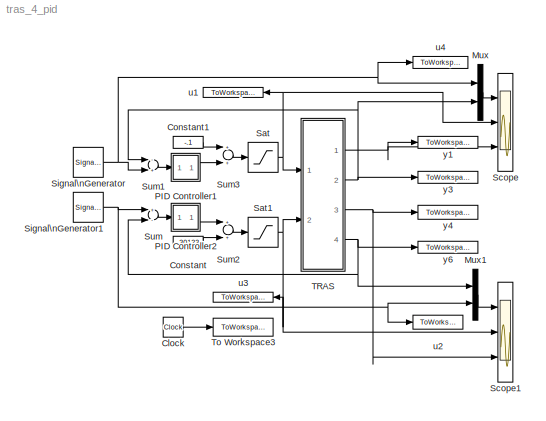
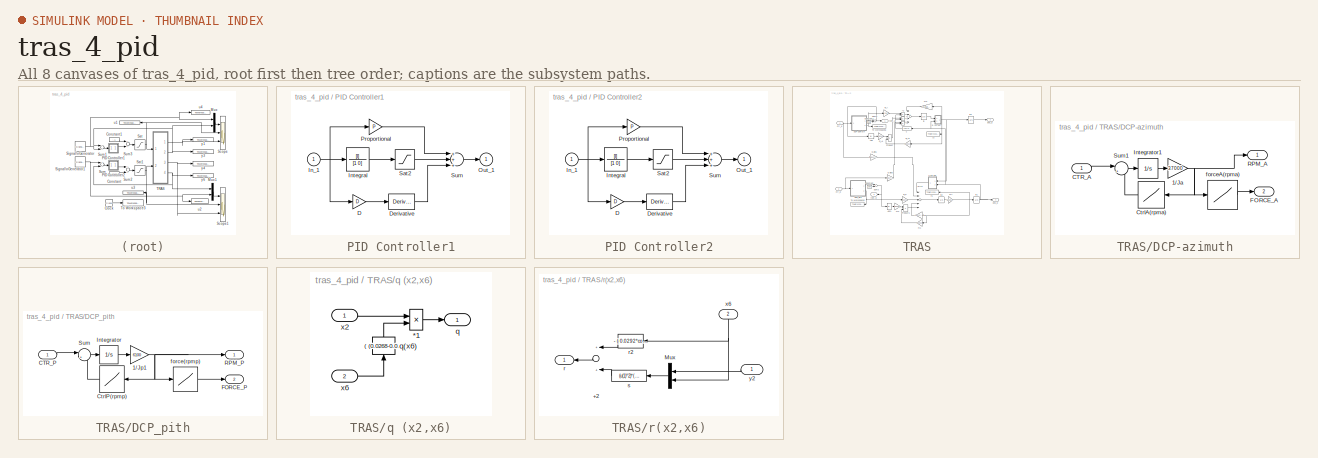
[diagram: thumbnail index - all 8 canvases of the model, root first then tree order]
MODEL tras_4_pid
KIND model
CONFIG AbsTol = auto
CONFIG FixedStep = .01
CONFIG MaxStep = auto
CONFIG MinStep = auto
CONFIG RelTol = 1e-3
CONFIG Solver = ode5
CONFIG SolverMode = Auto
CONFIG StartTime = 0.0
CONFIG StopTime = 80
BLOCK [Clock] Clock
  Decimation = 1
BLOCK [Constant] Constant
  Value = .30123
BLOCK [Constant] Constant1
  Value = -.1
BLOCK [Mux] Mux
  DisplayOption = bar
  Inputs = 2
  Ports = [2, 1]
BLOCK [Mux] Mux1
  DisplayOption = bar
  Inputs = 2
  Ports = [2, 1]
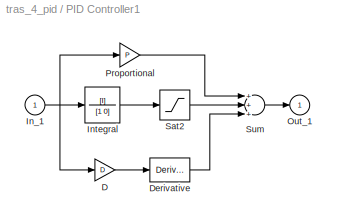
BLOCK [SubSystem] PID Controller1
  AncestorBlock = simulink_extras/Additional\nLinear/PID Controller
  MaskCallbackString = |||
  MaskDescription = Enter expressions for proportional, integral, and derivative terms.\nP+I/s+Ds
  MaskDisplay = disp('PID')
  MaskEnableString = on,on,on,on
  MaskHelp = This block implements a PID controller where parameters are entered for the Proportional, Integral and Derivative terms. Unmask this block to see how it works. The derivative term is implemented using a true derivative block.
  MaskIconFrame = on
  MaskIconOpaque = on
  MaskIconRotate = none
  MaskIconUnits = autoscale
  MaskPromptString = Proportional:|Integral:|Derivative:|Integral sat (0-1)
  MaskStyleString = edit,edit,edit,edit
  MaskToolTipString = on,on,on,on
  MaskTunableValueString = on,on,on,on
  MaskType = PID Controller
  MaskValueString = a|b|c|1
  MaskVarAliasString = ,,,
  MaskVariables = P=@1;I=@2;D=@3;S=@4;
  MaskVisibilityString = on,on,on,on
  Ports = [1, 1]
  TreatAsAtomicUnit = off
BLOCK [Gain] PID Controller1/D
  Gain = D
BLOCK [Derivative] PID Controller1/Derivative
BLOCK [Inport] PID Controller1/In_1
BLOCK [TransferFcn] PID Controller1/Integral
  Denominator = [1 0]
  Numerator = [I]
BLOCK [Outport] PID Controller1/Out_1
  InitialOutput = 0
BLOCK [Gain] PID Controller1/Proportional
  Gain = P
BLOCK [Saturate] PID Controller1/Sat2
  LowerLimit = -S
  UpperLimit = S
BLOCK [Sum] PID Controller1/Sum
  Inputs = +++
  Ports = [3, 1]
BLOCK [SubSystem] PID Controller2
  AncestorBlock = simulink_extras/Additional\nLinear/PID Controller
  MaskCallbackString = |||
  MaskDescription = Enter expressions for proportional, integral, and derivative terms.\nP+I/s+Ds
  MaskDisplay = disp('PID')
  MaskEnableString = on,on,on,on
  MaskHelp = This block implements a PID controller where parameters are entered for the Proportional, Integral and Derivative terms. Unmask this block to see how it works. The derivative term is implemented using a true derivative block.
  MaskIconFrame = on
  MaskIconOpaque = on
  MaskIconRotate = none
  MaskIconUnits = autoscale
  MaskPromptString = Proportional:|Integral:|Derivative:|Integral sat (0-1)
  MaskStyleString = edit,edit,edit,edit
  MaskToolTipString = on,on,on,on
  MaskTunableValueString = on,on,on,on
  MaskType = PID Controller
  MaskValueString = d|e|f|  1.4613
  MaskVarAliasString = ,,,
  MaskVariables = P=@1;I=@2;D=@3;S=@4;
  MaskVisibilityString = on,on,on,on
  Ports = [1, 1]
  TreatAsAtomicUnit = off
BLOCK [Gain] PID Controller2/D
  Gain = D
BLOCK [Derivative] PID Controller2/Derivative
BLOCK [Inport] PID Controller2/In_1
BLOCK [TransferFcn] PID Controller2/Integral
  Denominator = [1 0]
  Numerator = [I]
BLOCK [Outport] PID Controller2/Out_1
  InitialOutput = 0
BLOCK [Gain] PID Controller2/Proportional
  Gain = P
BLOCK [Saturate] PID Controller2/Sat2
  LowerLimit = -S
  UpperLimit = S
BLOCK [Sum] PID Controller2/Sum
  Inputs = +++
  Ports = [3, 1]
BLOCK [Saturate] Sat
BLOCK [Saturate] Sat1
  LowerLimit = .15
  UpperLimit = 1
BLOCK [Scope] Scope
  DataFormat = StructureWithTime
  NumInputPorts = 3
  Ports = [3]
  YMax = 0~0.006~40
  YMin = -0.0006~-0.001~0
BLOCK [Scope] Scope1
  DataFormat = StructureWithTime
  NumInputPorts = 3
  Ports = [3]
  SaveName = ScopeData1
  YMax = 1.75~1~14000
  YMin = -0.75~-1~-3000
BLOCK [SignalGenerator] Signal\nGenerator
  Amplitude = .1
  Frequency = .05
  WaveForm = square
BLOCK [SignalGenerator] Signal\nGenerator1
  Amplitude = .1
  Frequency = .025
  WaveForm = square
BLOCK [Sum] Sum
  InputSameDT = off
  Inputs = +-
  OutDataTypeMode = Inherit via internal rule
  Ports = [2, 1]
BLOCK [Sum] Sum1
  InputSameDT = off
  Inputs = -+
  OutDataTypeMode = Inherit via internal rule
  Ports = [2, 1]
BLOCK [Sum] Sum2
  InputSameDT = off
  OutDataTypeMode = Inherit via internal rule
  Ports = [2, 1]
BLOCK [Sum] Sum3
  InputSameDT = off
  OutDataTypeMode = Inherit via internal rule
  Ports = [2, 1]
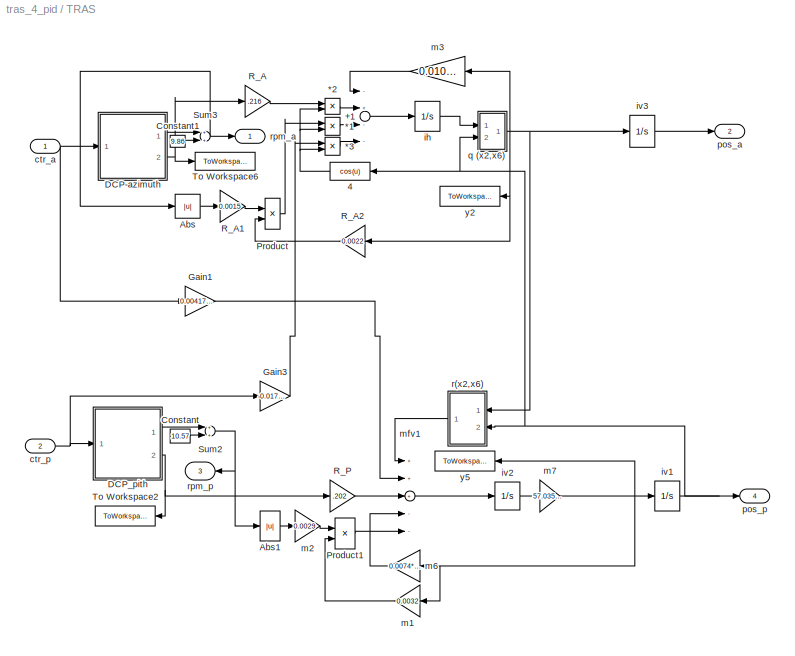
BLOCK [SubSystem] TRAS
  Ports = [2, 4]
  TreatAsAtomicUnit = off
BLOCK [Product] TRAS/*1
  Ports = [2, 1]
BLOCK [Product] TRAS/*2
  Ports = [2, 1]
BLOCK [Product] TRAS/*3
  Ports = [2, 1]
BLOCK [Sum] TRAS/+1
  Inputs = -+--
  Ports = [4, 1]
BLOCK [Fcn] TRAS/4
  Expr = cos(u)
BLOCK [Abs] TRAS/Abs
BLOCK [Abs] TRAS/Abs1
BLOCK [Constant] TRAS/Constant
  Value = 10.57
BLOCK [Constant] TRAS/Constant1
  Value = 9.86
BLOCK [SubSystem] TRAS/DCP-azimuth
  Ports = [1, 2]
  TreatAsAtomicUnit = off
BLOCK [Gain] TRAS/DCP-azimuth/1//Ja
  Gain = 37000
  ShowAdditionalParam = on
BLOCK [Inport] TRAS/DCP-azimuth/CTR_A
BLOCK [Lookup] TRAS/DCP-azimuth/CtrlA(rpma)
  InputValues = rpm_a
  OutputValues = control_a
BLOCK [Outport] TRAS/DCP-azimuth/FORCE_A
  Port = 2
BLOCK [Integrator] TRAS/DCP-azimuth/Integrator1
  Ports = [1, 1]
BLOCK [Outport] TRAS/DCP-azimuth/RPM_A
BLOCK [Sum] TRAS/DCP-azimuth/Sum1
  IconShape = round
  Inputs = |+-
  Ports = [2, 1]
BLOCK [Lookup] TRAS/DCP-azimuth/forceA(rpma)
  InputValues = rpm_a
  OutputValues = force_a
BLOCK [SubSystem] TRAS/DCP_pith
  Ports = [1, 2]
  TreatAsAtomicUnit = off
BLOCK [Gain] TRAS/DCP_pith/1//Jp1
  Gain = 6100
  SaturateOnIntegerOverflow = off
  ShowAdditionalParam = on
BLOCK [Inport] TRAS/DCP_pith/CTR_P
BLOCK [Lookup] TRAS/DCP_pith/CtrlP(rpmp)
  InputValues = rpm_p
  OutputValues = control_p
BLOCK [Outport] TRAS/DCP_pith/FORCE_P
  Port = 2
BLOCK [Integrator] TRAS/DCP_pith/Integrator
  Ports = [1, 1]
BLOCK [Outport] TRAS/DCP_pith/RPM_P
BLOCK [Sum] TRAS/DCP_pith/Sum
  IconShape = round
  Inputs = |+-
  Ports = [2, 1]
BLOCK [Lookup] TRAS/DCP_pith/force(rpmp)
  InputValues = rpm_p
  OutputValues = force_p
BLOCK [Gain] TRAS/Gain1
  Gain = 0.00417495398545
BLOCK [Gain] TRAS/Gain3
  Gain = -0.01782003784180
BLOCK [Product] TRAS/Product
  Ports = [2, 1]
BLOCK [Product] TRAS/Product1
  InputSameDT = off
  Ports = [2, 1]
BLOCK [Gain] TRAS/R_A
  Gain = .216
  SaturateOnIntegerOverflow = off
BLOCK [Gain] TRAS/R_A1
  Gain = 0.0015
  SaturateOnIntegerOverflow = off
BLOCK [Gain] TRAS/R_A2
  Gain = 0.0022
  SaturateOnIntegerOverflow = off
BLOCK [Gain] TRAS/R_P
  Gain = .202
  SaturateOnIntegerOverflow = off
BLOCK [Sum] TRAS/Sum2
  InputSameDT = off
  OutDataTypeMode = Inherit via internal rule
  Ports = [2, 1]
BLOCK [Sum] TRAS/Sum3
  InputSameDT = off
  OutDataTypeMode = Inherit via internal rule
  Ports = [2, 1]
BLOCK [ToWorkspace] TRAS/To Workspace2
  MaxDataPoints = inf
  SampleTime = -1
  SaveFormat = Array
  VariableName = force_pm
BLOCK [ToWorkspace] TRAS/To Workspace6
  MaxDataPoints = inf
  SampleTime = -1
  SaveFormat = Array
  VariableName = force_am
BLOCK [Inport] TRAS/ctr_a
BLOCK [Inport] TRAS/ctr_p
  Port = 2
BLOCK [Integrator] TRAS/ih
  LimitOutput = on
  LowerSaturationLimit = -10
  Ports = [1, 1]
  UpperSaturationLimit = 10
BLOCK [Integrator] TRAS/iv1
  InitialCondition = -.5319*0
  LowerSaturationLimit = -pi
  Ports = [1, 1]
  UpperSaturationLimit = pi
BLOCK [Integrator] TRAS/iv2
  LowerSaturationLimit = -pi
  Ports = [1, 1]
  UpperSaturationLimit = pi
BLOCK [Integrator] TRAS/iv3
  LimitOutput = on
  LowerSaturationLimit = -6
  Ports = [1, 1]
  UpperSaturationLimit = 6
BLOCK [Gain] TRAS/m1
  Gain = 0.0032
BLOCK [Gain] TRAS/m2
  Gain = 0.0029
BLOCK [Gain] TRAS/m3
  Gain = 0.0108*0.4935*1.1051
  SaturateOnIntegerOverflow = off
BLOCK [Gain] TRAS/m6
  Gain = 0.0074*1.7175
  SaturateOnIntegerOverflow = off
BLOCK [Gain] TRAS/m7
  Gain = 57.0357*0.5833
BLOCK [Sum] TRAS/mfv1
  Inputs = +++--
  Ports = [5, 1]
BLOCK [Outport] TRAS/pos_a
  Port = 2
BLOCK [Outport] TRAS/pos_p
  Port = 4
BLOCK [SubSystem] TRAS/q (x2,x6)
  Ports = [2, 1]
  TreatAsAtomicUnit = off
BLOCK [Fcn] TRAS/q (x2,x6)/ q(x6)
  Expr = ( (0.0268-0.00300962066650)*cos(u)^2) +0.00300962066650
BLOCK [Product] TRAS/q (x2,x6)/*1
  Inputs = */
  Ports = [2, 1]
BLOCK [Outport] TRAS/q (x2,x6)/q
BLOCK [Inport] TRAS/q (x2,x6)/x2
BLOCK [Inport] TRAS/q (x2,x6)/x6
  Port = 2
BLOCK [SubSystem] TRAS/r(x2,x6)
  Ports = [2, 1]
  TreatAsAtomicUnit = off
BLOCK [Sum] TRAS/r(x2,x6)/+2
  Ports = [2, 1]
BLOCK [Mux] TRAS/r(x2,x6)/Mux
  DisplayOption = bar
  Inputs = 2
  Ports = [2, 1]
BLOCK [Outport] TRAS/r(x2,x6)/r
BLOCK [Fcn] TRAS/r(x2,x6)/r2
  Expr = - ( 0.0292*cos(u)+ 0.0546*sin(u))*1.7143
BLOCK [Fcn] TRAS/r(x2,x6)/s
  Expr = (u(1)^2)*(     -0.07389953104162*  0.28753198180218*sin(u(2))*cos(u(2)))
BLOCK [Inport] TRAS/r(x2,x6)/x6
  Port = 2
BLOCK [Inport] TRAS/r(x2,x6)/y2
BLOCK [Outport] TRAS/rpm_a
BLOCK [Outport] TRAS/rpm_p
  Port = 3
BLOCK [ToWorkspace] TRAS/y2
  MaxDataPoints = inf
  SampleTime = -1
  SaveFormat = Array
  VariableName = vel_am
BLOCK [ToWorkspace] TRAS/y5
  MaxDataPoints = inf
  SampleTime = -1
  SaveFormat = Array
  VariableName = vel_pm
BLOCK [ToWorkspace] To Workspace3
  MaxDataPoints = inf
  SampleTime = -1
  SaveFormat = Array
  VariableName = t
BLOCK [ToWorkspace] u1
  MaxDataPoints = inf
  SampleTime = -1
  SaveFormat = Array
  VariableName = control_am
BLOCK [ToWorkspace] u2
  MaxDataPoints = inf
  SampleTime = -1
  SaveFormat = Array
  VariableName = pos_pd
BLOCK [ToWorkspace] u3
  MaxDataPoints = inf
  SampleTime = -1
  SaveFormat = Array
  VariableName = control_pm
BLOCK [ToWorkspace] u4
  MaxDataPoints = inf
  SampleTime = -1
  SaveFormat = Array
  VariableName = pos_ad
BLOCK [ToWorkspace] y1
  MaxDataPoints = inf
  SampleTime = -1
  SaveFormat = Array
  VariableName = rpm_am
BLOCK [ToWorkspace] y3
  MaxDataPoints = inf
  SampleTime = -1
  SaveFormat = Array
  VariableName = pos_am
BLOCK [ToWorkspace] y4
  MaxDataPoints = inf
  SampleTime = -1
  SaveFormat = Array
  VariableName = rpm_pm
BLOCK [ToWorkspace] y6
  MaxDataPoints = inf
  SampleTime = -1
  SaveFormat = Array
  VariableName = pos_pm
LINE Clock:1 -> To Workspace3:1
LINE Constant1:1 -> Sum3:1
LINE Constant:1 -> Sum2:2
LINE Mux1:1 -> Scope1:1
LINE Mux:1 -> Scope:1
LINE PID Controller1/D:1 -> PID Controller1/Derivative:1
LINE PID Controller1/Derivative:1 -> PID Controller1/Sum:3
NET PID Controller1/In_1:1 -> PID Controller1/D:1, PID Controller1/Integral:1, PID Controller1/Proportional:1
LINE PID Controller1/Integral:1 -> PID Controller1/Sat2:1
LINE PID Controller1/Proportional:1 -> PID Controller1/Sum:1
LINE PID Controller1/Sat2:1 -> PID Controller1/Sum:2
LINE PID Controller1/Sum:1 -> PID Controller1/Out_1:1
LINE PID Controller1:1 -> Sum3:2
LINE PID Controller2/D:1 -> PID Controller2/Derivative:1
LINE PID Controller2/Derivative:1 -> PID Controller2/Sum:3
NET PID Controller2/In_1:1 -> PID Controller2/D:1, PID Controller2/Integral:1, PID Controller2/Proportional:1
LINE PID Controller2/Integral:1 -> PID Controller2/Sat2:1
LINE PID Controller2/Proportional:1 -> PID Controller2/Sum:1
LINE PID Controller2/Sat2:1 -> PID Controller2/Sum:2
LINE PID Controller2/Sum:1 -> PID Controller2/Out_1:1
LINE PID Controller2:1 -> Sum2:1
NET Sat1:1 -> Scope1:2, TRAS:2, u3:1
NET Sat:1 -> Scope:2, TRAS:1, u1:1
NET Signal\nGenerator1:1 -> Mux1:2, Sum:1, u2:1
NET Signal\nGenerator:1 -> Mux:1, Sum1:2, u4:1
LINE Sum1:1 -> PID Controller1:1
LINE Sum2:1 -> Sat1:1
LINE Sum3:1 -> Sat:1
LINE Sum:1 -> PID Controller2:1
LINE TRAS/*1:1 -> TRAS/+1:3
LINE TRAS/*2:1 -> TRAS/+1:2
LINE TRAS/*3:1 -> TRAS/+1:4
LINE TRAS/+1:1 -> TRAS/ih:1
NET TRAS/4:1 -> TRAS/*1:2, TRAS/*2:2, TRAS/*3:2
LINE TRAS/Abs1:1 -> TRAS/m2:1
LINE TRAS/Abs:1 -> TRAS/R_A1:1
LINE TRAS/Constant1:1 -> TRAS/Sum3:2
LINE TRAS/Constant:1 -> TRAS/Sum2:2
NET TRAS/DCP-azimuth/1//Ja:1 -> TRAS/DCP-azimuth/CtrlA(rpma):1, TRAS/DCP-azimuth/RPM_A:1, TRAS/DCP-azimuth/forceA(rpma):1
LINE TRAS/DCP-azimuth/CTR_A:1 -> TRAS/DCP-azimuth/Sum1:1
LINE TRAS/DCP-azimuth/CtrlA(rpma):1 -> TRAS/DCP-azimuth/Sum1:2
LINE TRAS/DCP-azimuth/Integrator1:1 -> TRAS/DCP-azimuth/1//Ja:1
LINE TRAS/DCP-azimuth/Sum1:1 -> TRAS/DCP-azimuth/Integrator1:1
LINE TRAS/DCP-azimuth/forceA(rpma):1 -> TRAS/DCP-azimuth/FORCE_A:1
LINE TRAS/DCP-azimuth:1 -> TRAS/Sum3:1
NET TRAS/DCP-azimuth:2 -> TRAS/R_A:1, TRAS/To Workspace6:1
NET TRAS/DCP_pith/1//Jp1:1 -> TRAS/DCP_pith/CtrlP(rpmp):1, TRAS/DCP_pith/RPM_P:1, TRAS/DCP_pith/force(rpmp):1
LINE TRAS/DCP_pith/CTR_P:1 -> TRAS/DCP_pith/Sum:1
LINE TRAS/DCP_pith/CtrlP(rpmp):1 -> TRAS/DCP_pith/Sum:2
LINE TRAS/DCP_pith/Integrator:1 -> TRAS/DCP_pith/1//Jp1:1
LINE TRAS/DCP_pith/Sum:1 -> TRAS/DCP_pith/Integrator:1
LINE TRAS/DCP_pith/force(rpmp):1 -> TRAS/DCP_pith/FORCE_P:1
LINE TRAS/DCP_pith:1 -> TRAS/Sum2:1
NET TRAS/DCP_pith:2 -> TRAS/R_P:1, TRAS/To Workspace2:1
LINE TRAS/Gain1:1 -> TRAS/mfv1:2
LINE TRAS/Gain3:1 -> TRAS/*3:1
LINE TRAS/Product1:1 -> TRAS/mfv1:5
LINE TRAS/Product:1 -> TRAS/*1:1
LINE TRAS/R_A1:1 -> TRAS/Product:1
LINE TRAS/R_A2:1 -> TRAS/Product:2
LINE TRAS/R_A:1 -> TRAS/*2:1
LINE TRAS/R_P:1 -> TRAS/mfv1:3
NET TRAS/Sum2:1 -> TRAS/Abs1:1, TRAS/rpm_p:1
NET TRAS/Sum3:1 -> TRAS/Abs:1, TRAS/rpm_a:1
NET TRAS/ctr_a:1 -> TRAS/DCP-azimuth:1, TRAS/Gain1:1
NET TRAS/ctr_p:1 -> TRAS/DCP_pith:1, TRAS/Gain3:1
LINE TRAS/ih:1 -> TRAS/q (x2,x6):1
NET TRAS/iv1:1 -> TRAS/4:1, TRAS/pos_p:1, TRAS/q (x2,x6):2, TRAS/r(x2,x6):2
LINE TRAS/iv2:1 -> TRAS/m7:1
LINE TRAS/iv3:1 -> TRAS/pos_a:1
LINE TRAS/m1:1 -> TRAS/Product1:2
LINE TRAS/m2:1 -> TRAS/Product1:1
LINE TRAS/m3:1 -> TRAS/+1:1
LINE TRAS/m6:1 -> TRAS/mfv1:4
NET TRAS/m7:1 -> TRAS/iv1:1, TRAS/m1:1, TRAS/m6:1, TRAS/y5:1
LINE TRAS/mfv1:1 -> TRAS/iv2:1
LINE TRAS/q (x2,x6)/ q(x6):1 -> TRAS/q (x2,x6)/*1:2
LINE TRAS/q (x2,x6)/*1:1 -> TRAS/q (x2,x6)/q:1
LINE TRAS/q (x2,x6)/x2:1 -> TRAS/q (x2,x6)/*1:1
LINE TRAS/q (x2,x6)/x6:1 -> TRAS/q (x2,x6)/ q(x6):1
NET TRAS/q (x2,x6):1 -> TRAS/R_A2:1, TRAS/iv3:1, TRAS/m3:1, TRAS/r(x2,x6):1, TRAS/y2:1
LINE TRAS/r(x2,x6)/+2:1 -> TRAS/r(x2,x6)/r:1
LINE TRAS/r(x2,x6)/Mux:1 -> TRAS/r(x2,x6)/s:1
LINE TRAS/r(x2,x6)/r2:1 -> TRAS/r(x2,x6)/+2:1
LINE TRAS/r(x2,x6)/s:1 -> TRAS/r(x2,x6)/+2:2
NET TRAS/r(x2,x6)/x6:1 -> TRAS/r(x2,x6)/Mux:2, TRAS/r(x2,x6)/r2:1
LINE TRAS/r(x2,x6)/y2:1 -> TRAS/r(x2,x6)/Mux:1
LINE TRAS/r(x2,x6):1 -> TRAS/mfv1:1
NET TRAS:1 -> Scope:3, y1:1
NET TRAS:2 -> Mux:2, Sum1:1, y3:1
NET TRAS:3 -> Scope1:3, y4:1
NET TRAS:4 -> Mux1:1, Sum:2, y6:1
note: NET lines group one-source signal fan-out (src -> all destinations, sorted); 1:1 wires keep LINE
